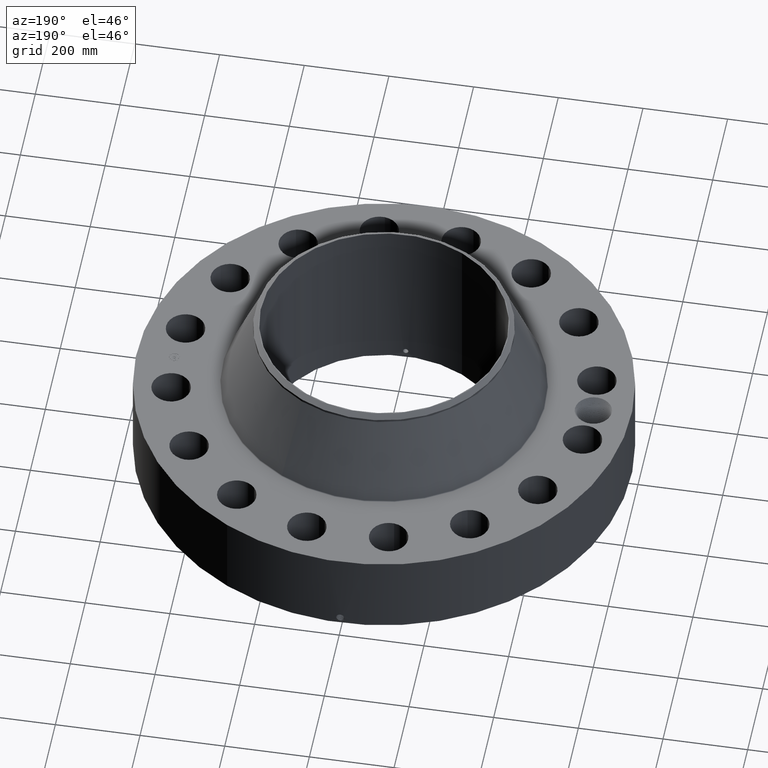
[diagram: clean part render]
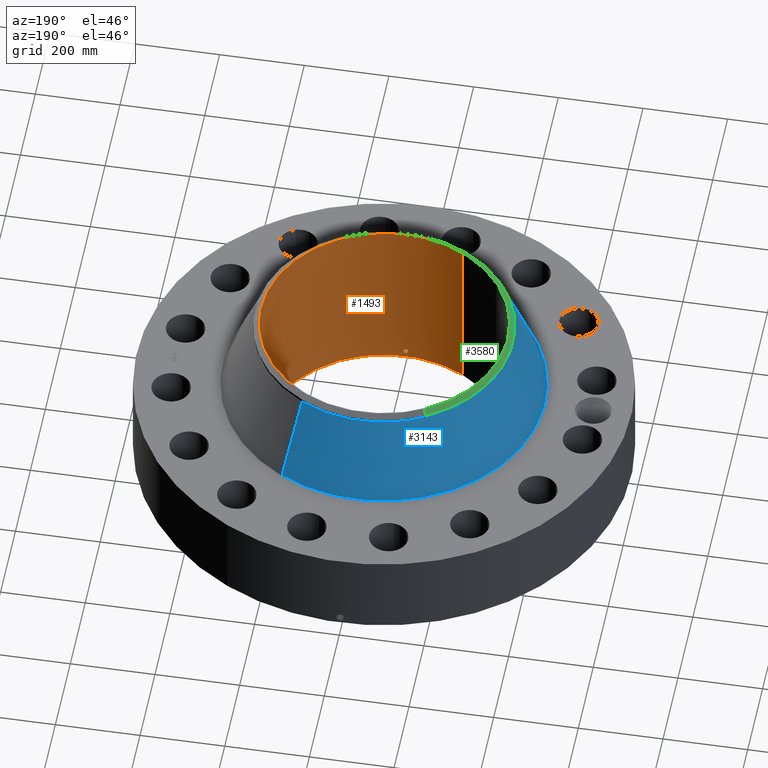
[diagram: same view with three faces highlighted in distinct colors, each labeled with its STEP entity id]
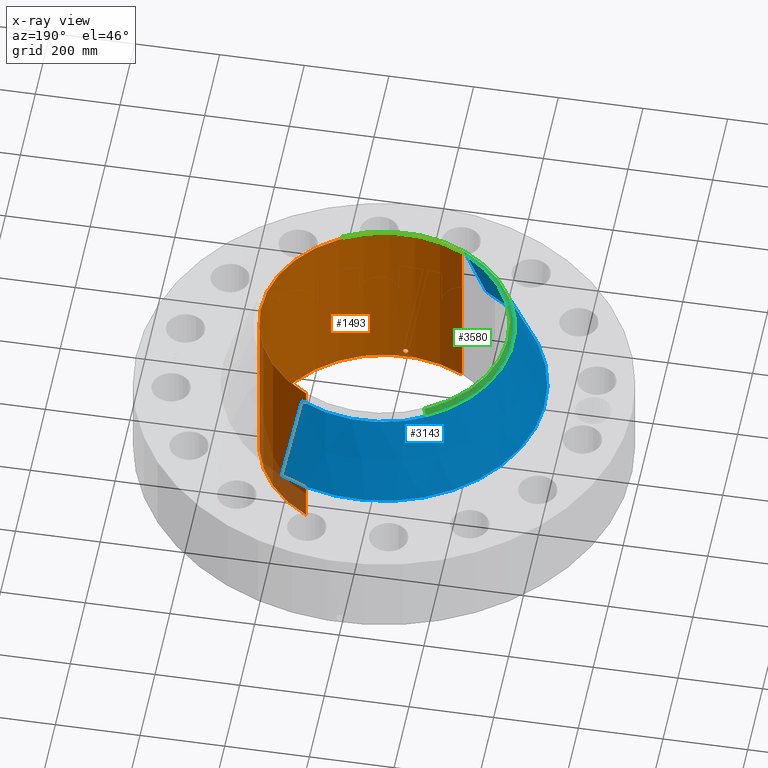
[diagram: x-ray of the same camera — body ghosted, the three highlighted faces saturated]
A machine part, auxiliary view with three faces highlighted in distinct colors.
The next image is the same camera in x-ray (body ghosted, the three faces saturated) — at least one of them is partly hidden behind the body in this view.
Their STEP definitions:

[orange] entity #1493 — the highlighted cylindrical surface (partial cylindrical patch) has radius 290.525 mm, axis along (0, 0, -1).
#260=AXIS2_PLACEMENT_3D('Circle Axis2P3D',#258,#259,$) ;
#1424=AXIS2_PLACEMENT_3D('Cylinder Axis2P3D',#1421,#1422,#1423) ;
#1428=AXIS2_PLACEMENT_3D('Circle Axis2P3D',#1426,#1427,$) ;
#258=CARTESIAN_POINT('Axis2P3D Location',(0.,0.,0.250000000001)) ;
#262=CARTESIAN_POINT('Vertex',(5.48366931058,10.0377893429,0.250000000001)) ;
#264=CARTESIAN_POINT('Vertex',(-5.48366931058,-10.0377893429,0.250000000001)) ;
#1421=CARTESIAN_POINT('Axis2P3D Location',(0.,0.,8.25000000003)) ;
#1426=CARTESIAN_POINT('Axis2P3D Location',(0.,0.,16.2500000001)) ;
#1430=CARTESIAN_POINT('Vertex',(5.48366931058,10.0377893429,16.2500000001)) ;
#1432=CARTESIAN_POINT('Vertex',(-5.48366931058,-10.0377893429,16.2500000001)) ;
#1435=CARTESIAN_POINT('Line Origine',(5.48366931058,10.0377893429,8.25000000003)) ;
#1440=CARTESIAN_POINT('Line Origine',(-5.48366931058,-10.0377893429,8.25000000003)) ;
#1452=CARTESIAN_POINT('Control Point',(0.219395640473,-11.4358956603,0.820143615352)) ;
#1453=CARTESIAN_POINT('Control Point',(0.194442706508,-11.436374378,0.774467576107)) ;
#1454=CARTESIAN_POINT('Control Point',(0.157603879927,-11.4370130407,0.735286591871)) ;
#1455=CARTESIAN_POINT('Control Point',(0.111104420051,-11.4376342031,0.706755405708)) ;
#1456=CARTESIAN_POINT('Control Point',(0.0336683668553,-11.438128402,0.684116691454)) ;
#1457=CARTESIAN_POINT('Control Point',(-0.044676896454,-11.437957585,0.691944425172)) ;
#1458=CARTESIAN_POINT('Control Point',(-0.070308298459,-11.4378249816,0.697958084277)) ;
#1459=CARTESIAN_POINT('Control Point',(-0.143966473076,-11.4372390354,0.725793874247)) ;
#1460=CARTESIAN_POINT('Control Point',(-0.203255403227,-11.4362826947,0.780515318705)) ;
#1461=CARTESIAN_POINT('Control Point',(-0.23221829795,-11.4356555577,0.826759380954)) ;
#1462=CARTESIAN_POINT('Control Point',(-0.255841980448,-11.4351401649,0.904904203057)) ;
#1463=CARTESIAN_POINT('Control Point',(-0.248280172551,-11.4353050047,0.98426399375)) ;
#1464=CARTESIAN_POINT('Control Point',(-0.24204645791,-11.4354428608,1.01082230669)) ;
#1465=CARTESIAN_POINT('Control Point',(-0.232313871407,-11.4356478264,1.03620972154)) ;
#1466=CARTESIAN_POINT('Control Point',(-0.219395640473,-11.4358956603,1.05985638466)) ;
#1467=CARTESIAN_POINT('Vertex',(0.219395640473,-11.4358956603,0.820143615352)) ;
#1469=CARTESIAN_POINT('Vertex',(-0.219395640473,-11.4358956603,1.05985638466)) ;
#1473=CARTESIAN_POINT('Control Point',(-0.219395640473,-11.4358956603,1.05985638466)) ;
#1474=CARTESIAN_POINT('Control Point',(-0.194442706552,-11.436374378,1.10553242382)) ;
#1475=CARTESIAN_POINT('Control Point',(-0.157603880058,-11.4370130407,1.144713408)) ;
#1476=CARTESIAN_POINT('Control Point',(-0.111104419874,-11.4376342031,1.17324459435)) ;
#1477=CARTESIAN_POINT('Control Point',(-0.0336683667738,-11.438128402,1.19588330854)) ;
#1478=CARTESIAN_POINT('Control Point',(0.0446768964381,-11.437957585,1.18805557484)) ;
#1479=CARTESIAN_POINT('Control Point',(0.0703082984614,-11.4378249816,1.18204191573)) ;
#1480=CARTESIAN_POINT('Control Point',(0.143966473076,-11.4372390354,1.15420612576)) ;
#1481=CARTESIAN_POINT('Control Point',(0.203255403225,-11.4362826947,1.09948468131)) ;
#1482=CARTESIAN_POINT('Control Point',(0.232218297945,-11.4356555577,1.05324061906)) ;
#1483=CARTESIAN_POINT('Control Point',(0.255841980448,-11.4351401649,0.975095796958)) ;
#1484=CARTESIAN_POINT('Control Point',(0.248280172551,-11.4353050047,0.895736006261)) ;
#1485=CARTESIAN_POINT('Control Point',(0.242046457911,-11.4354428608,0.869177693319)) ;
#1486=CARTESIAN_POINT('Control Point',(0.232313871408,-11.4356478264,0.843790278464)) ;
#1487=CARTESIAN_POINT('Control Point',(0.219395640473,-11.4358956603,0.820143615352)) ;
#259=DIRECTION('Axis2P3D Direction',(0.,0.,-0.0393700787402)) ;
#1422=DIRECTION('Axis2P3D Direction',(0.,0.,-0.0393700787402)) ;
#1423=DIRECTION('Axis2P3D XDirection',(-0.0188750212049,-0.0345504945626,0.)) ;
#1427=DIRECTION('Axis2P3D Direction',(0.,0.,-0.0393700787402)) ;
#1436=DIRECTION('Vector Direction',(0.,0.,-0.0393700787402)) ;
#1441=DIRECTION('Vector Direction',(0.,0.,-0.0393700787402)) ;
#1437=VECTOR('Line Direction',#1436,0.0393700787402) ;
#1442=VECTOR('Line Direction',#1441,0.0393700787402) ;
#1446=ORIENTED_EDGE('',*,*,#1434,.F.) ;
#1447=ORIENTED_EDGE('',*,*,#1439,.T.) ;
#1448=ORIENTED_EDGE('',*,*,#266,.T.) ;
#1449=ORIENTED_EDGE('',*,*,#1444,.F.) ;
#1490=ORIENTED_EDGE('',*,*,#1471,.F.) ;
#1491=ORIENTED_EDGE('',*,*,#1488,.F.) ;
#1492=FACE_BOUND('',#1489,.T.) ;
#1493=ADVANCED_FACE('PartBody',(#1450,#1492),#1425,.F.) ;
#1451=B_SPLINE_CURVE_WITH_KNOTS('',5,(#1452,#1453,#1454,#1455,#1456,#1457,#1458,#1459,#1460,#1461,#1462,#1463,#1464,#1465,#1466),.UNSPECIFIED.,.F.,.U.,(6,3,3,3,6),(0.,9.34840546495,14.0230141945,23.3730612922,28.2127671489),.UNSPECIFIED.) ;
#1472=B_SPLINE_CURVE_WITH_KNOTS('',5,(#1473,#1474,#1475,#1476,#1477,#1478,#1479,#1480,#1481,#1482,#1483,#1484,#1485,#1486,#1487),.UNSPECIFIED.,.F.,.U.,(6,3,3,3,6),(0.,9.34840544836,14.0230141771,23.373061275,28.2127671321),.UNSPECIFIED.) ;
#261=CIRCLE('generated circle',#260,11.438) ;
#1429=CIRCLE('generated circle',#1428,11.438) ;
#1425=CYLINDRICAL_SURFACE('generated cylinder',#1424,11.438) ;
#266=EDGE_CURVE('',#263,#265,#261,.T.) ;
#1434=EDGE_CURVE('',#1431,#1433,#1429,.T.) ;
#1439=EDGE_CURVE('',#1431,#263,#1438,.T.) ;
#1444=EDGE_CURVE('',#1433,#265,#1443,.T.) ;
#1471=EDGE_CURVE('',#1468,#1470,#1451,.T.) ;
#1488=EDGE_CURVE('',#1470,#1468,#1472,.T.) ;
#1445=EDGE_LOOP('',(#1446,#1447,#1448,#1449)) ;
#1489=EDGE_LOOP('',(#1490,#1491)) ;
#1450=FACE_OUTER_BOUND('',#1445,.T.) ;
#1438=LINE('Line',#1435,#1437) ;
#1443=LINE('Line',#1440,#1442) ;
#263=VERTEX_POINT('',#262) ;
#265=VERTEX_POINT('',#264) ;
#1431=VERTEX_POINT('',#1430) ;
#1433=VERTEX_POINT('',#1432) ;
#1468=VERTEX_POINT('',#1467) ;
#1470=VERTEX_POINT('',#1469) ;

[blue] entity #3143 — the highlighted conical surface has half-angle 22.087 deg.
#2373=AXIS2_PLACEMENT_3D('Circle Axis2P3D',#2371,#2372,$) ;
#3104=AXIS2_PLACEMENT_3D('Cone Axis2P3D',#3101,#3102,#3103) ;
#3134=AXIS2_PLACEMENT_3D('Circle Axis2P3D',#3132,#3133,$) ;
#2349=CARTESIAN_POINT('Vertex',(7.1768157043,13.1370730277,8.32487852866)) ;
#2356=CARTESIAN_POINT('Vertex',(-7.1768157043,-13.1370730277,8.32487852866)) ;
#2371=CARTESIAN_POINT('Axis2P3D Location',(0.,0.,8.32487852866)) ;
#3101=CARTESIAN_POINT('Axis2P3D Location',(0.,0.,15.6429612083)) ;
#3106=CARTESIAN_POINT('Line Origine',(6.46496108379,11.8340318852,11.9839198685)) ;
#3110=CARTESIAN_POINT('Vertex',(5.75310646327,10.5309907427,15.6429612083)) ;
#3117=CARTESIAN_POINT('Vertex',(-5.75310646327,-10.5309907427,15.6429612083)) ;
#3120=CARTESIAN_POINT('Line Origine',(-6.46496108379,-11.8340318852,11.9839198685)) ;
#3132=CARTESIAN_POINT('Axis2P3D Location',(0.,0.,15.6429612083)) ;
#2372=DIRECTION('Axis2P3D Direction',(0.,0.,-0.0393700787402)) ;
#3102=DIRECTION('Axis2P3D Direction',(0.,0.,-0.0393700787402)) ;
#3103=DIRECTION('Axis2P3D XDirection',(-0.0188750212049,-0.0345504945626,0.)) ;
#3107=DIRECTION('Vector Direction',(0.00709723940825,0.0129914095949,-0.0364808932117)) ;
#3121=DIRECTION('Vector Direction',(-0.00709723940825,-0.0129914095949,-0.0364808932117)) ;
#3133=DIRECTION('Axis2P3D Direction',(0.,0.,-0.0393700787402)) ;
#3108=VECTOR('Line Direction',#3107,0.0393700787402) ;
#3122=VECTOR('Line Direction',#3121,0.0393700787402) ;
#3138=ORIENTED_EDGE('',*,*,#2375,.F.) ;
#3139=ORIENTED_EDGE('',*,*,#3124,.T.) ;
#3140=ORIENTED_EDGE('',*,*,#3136,.T.) ;
#3141=ORIENTED_EDGE('',*,*,#3112,.F.) ;
#3143=ADVANCED_FACE('PartBody',(#3142),#3105,.T.) ;
#2374=CIRCLE('generated circle',#2373,14.9696149379) ;
#3135=CIRCLE('generated circle',#3134,12.) ;
#3105=CONICAL_SURFACE('Cone',#3104,12.,0.385488962437) ;
#2375=EDGE_CURVE('',#2357,#2350,#2374,.T.) ;
#3112=EDGE_CURVE('',#2350,#3111,#3109,.F.) ;
#3124=EDGE_CURVE('',#2357,#3118,#3123,.F.) ;
#3136=EDGE_CURVE('',#3118,#3111,#3135,.T.) ;
#3137=EDGE_LOOP('',(#3138,#3139,#3140,#3141)) ;
#3142=FACE_OUTER_BOUND('',#3137,.T.) ;
#3109=LINE('Line',#3106,#3108) ;
#3123=LINE('Line',#3120,#3122) ;
#2350=VERTEX_POINT('',#2349) ;
#2357=VERTEX_POINT('',#2356) ;
#3111=VERTEX_POINT('',#3110) ;
#3118=VERTEX_POINT('',#3117) ;

[green] entity #3580 — the highlighted conical surface has half-angle 52.5 deg.
#2715=AXIS2_PLACEMENT_3D('Circle Axis2P3D',#2713,#2714,$) ;
#3545=AXIS2_PLACEMENT_3D('Cone Axis2P3D',#3542,#3543,#3544) ;
#3563=AXIS2_PLACEMENT_3D('Circle Axis2P3D',#3561,#3562,$) ;
#3570=AXIS2_PLACEMENT_3D('Circle Axis2P3D',#3568,#3569,$) ;
#2708=CARTESIAN_POINT('Vertex',(5.52141935299,-10.1068903321,16.2500000001)) ;
#2710=CARTESIAN_POINT('Vertex',(-5.52141935299,10.1068903321,16.2500000001)) ;
#2713=CARTESIAN_POINT('Axis2P3D Location',(0.,0.,16.2500000001)) ;
#3542=CARTESIAN_POINT('Axis2P3D Location',(0.,0.,16.2500000001)) ;
#3547=CARTESIAN_POINT('Line Origine',(5.63726290813,-10.3189405374,16.0645908404)) ;
#3551=CARTESIAN_POINT('Vertex',(5.75310646327,-10.5309907427,15.8791816807)) ;
#3554=CARTESIAN_POINT('Line Origine',(-5.63726290813,10.3189405374,16.0645908404)) ;
#3558=CARTESIAN_POINT('Vertex',(-5.75310646327,10.5309907427,15.8791816807)) ;
#3561=CARTESIAN_POINT('Axis2P3D Location',(0.,0.,15.8791816807)) ;
#3565=CARTESIAN_POINT('Vertex',(-5.75310646327,-10.5309907427,15.8791816807)) ;
#3568=CARTESIAN_POINT('Axis2P3D Location',(0.,0.,15.8791816807)) ;
#2714=DIRECTION('Axis2P3D Direction',(0.,0.,-0.0393700787402)) ;
#3543=DIRECTION('Axis2P3D Direction',(-0.,-0.,-0.0393700787402)) ;
#3544=DIRECTION('Axis2P3D XDirection',(-0.0188750212049,0.0345504945626,0.)) ;
#3548=DIRECTION('Vector Direction',(0.014974561121,-0.02741075027,-0.023966985394)) ;
#3555=DIRECTION('Vector Direction',(-0.014974561121,0.02741075027,-0.023966985394)) ;
#3562=DIRECTION('Axis2P3D Direction',(0.,0.,-0.0393700787402)) ;
#3569=DIRECTION('Axis2P3D Direction',(0.,0.,-0.0393700787402)) ;
#3549=VECTOR('Line Direction',#3548,0.0393700787402) ;
#3556=VECTOR('Line Direction',#3555,0.0393700787402) ;
#3574=ORIENTED_EDGE('',*,*,#3553,.F.) ;
#3575=ORIENTED_EDGE('',*,*,#2717,.F.) ;
#3576=ORIENTED_EDGE('',*,*,#3560,.T.) ;
#3577=ORIENTED_EDGE('',*,*,#3567,.T.) ;
#3578=ORIENTED_EDGE('',*,*,#3572,.F.) ;
#3580=ADVANCED_FACE('PartBody',(#3579),#3546,.T.) ;
#2716=CIRCLE('generated circle',#2715,11.5167401575) ;
#3564=CIRCLE('generated circle',#3563,12.) ;
#3571=CIRCLE('generated circle',#3570,12.) ;
#3546=CONICAL_SURFACE('Cone',#3545,11.5167401575,0.916297857297) ;
#2717=EDGE_CURVE('',#2711,#2709,#2716,.F.) ;
#3553=EDGE_CURVE('',#2709,#3552,#3550,.T.) ;
#3560=EDGE_CURVE('',#2711,#3559,#3557,.T.) ;
#3567=EDGE_CURVE('',#3559,#3566,#3564,.F.) ;
#3572=EDGE_CURVE('',#3552,#3566,#3571,.T.) ;
#3573=EDGE_LOOP('',(#3574,#3575,#3576,#3577,#3578)) ;
#3579=FACE_OUTER_BOUND('',#3573,.T.) ;
#3550=LINE('Line',#3547,#3549) ;
#3557=LINE('Line',#3554,#3556) ;
#2709=VERTEX_POINT('',#2708) ;
#2711=VERTEX_POINT('',#2710) ;
#3552=VERTEX_POINT('',#3551) ;
#3559=VERTEX_POINT('',#3558) ;
#3566=VERTEX_POINT('',#3565) ;